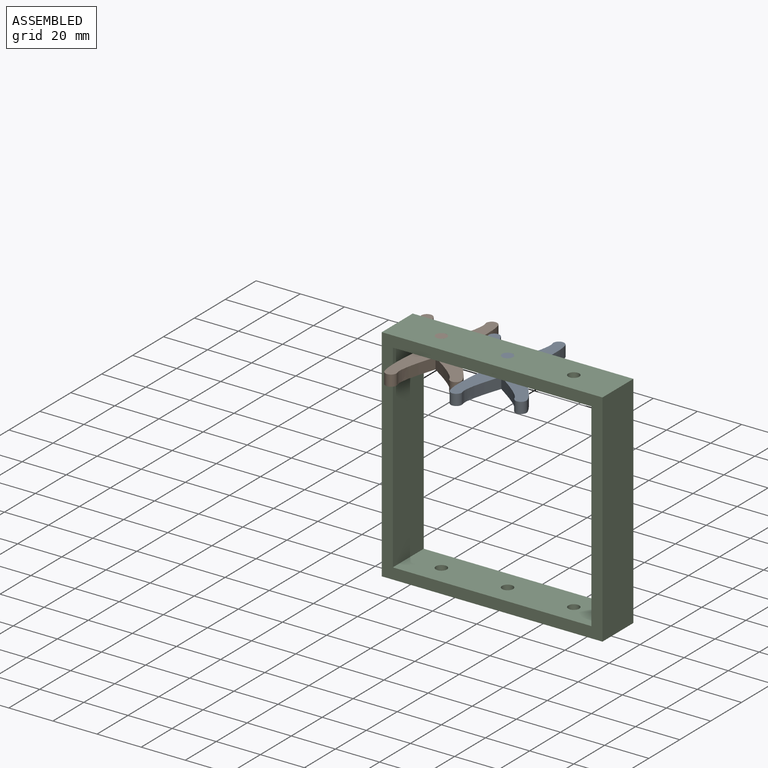
[diagram: assembled view]
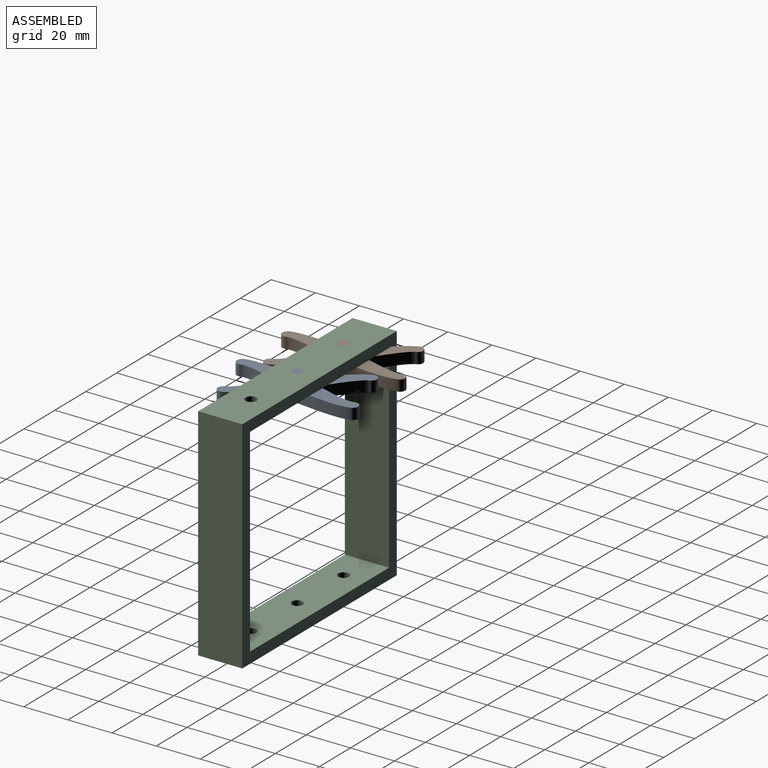
[diagram: assembled view, second angle]
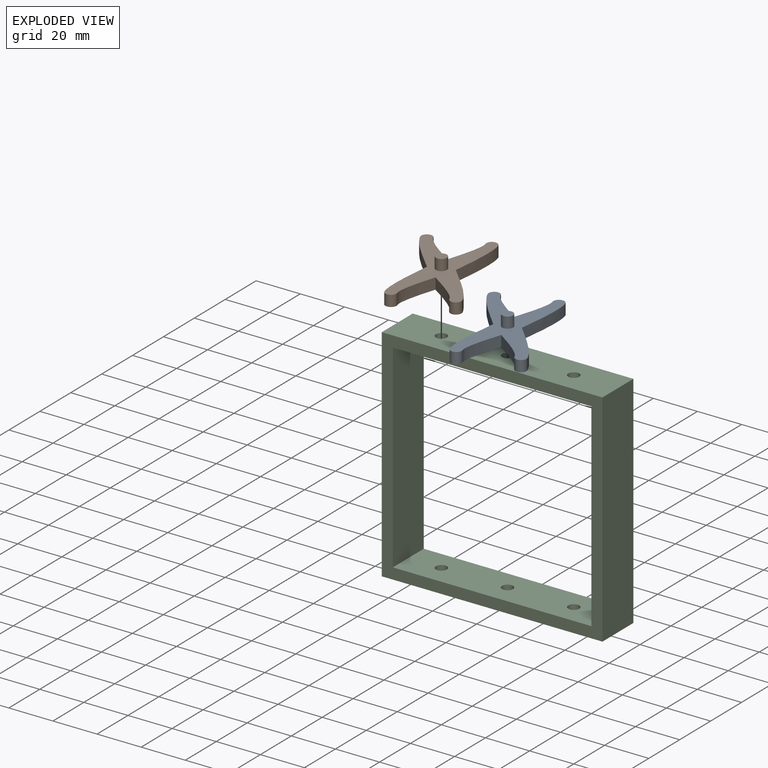
[diagram: exploded view]
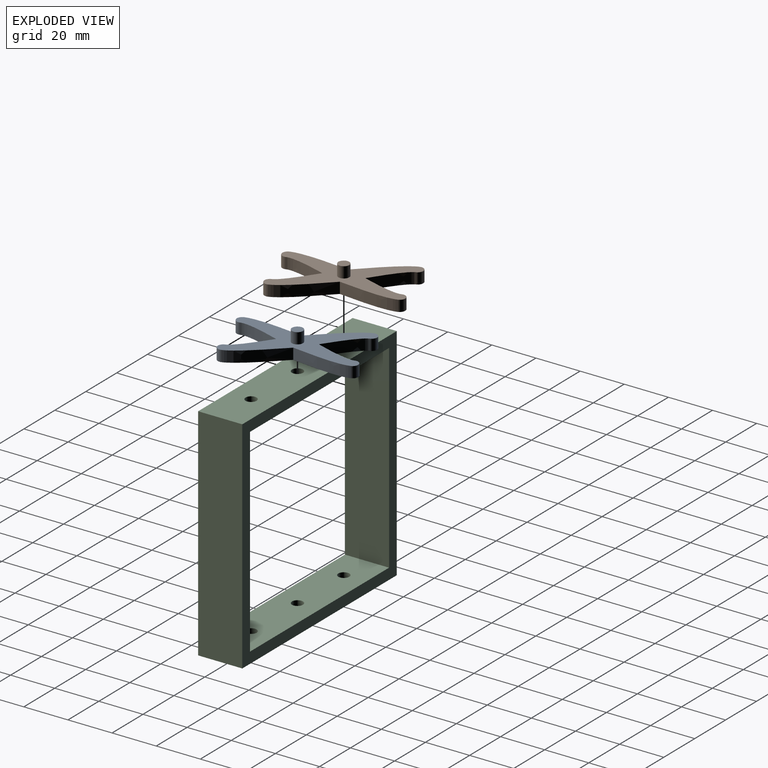
[diagram: exploded view, second angle]
ASSEMBLY  parts=3 mates=2
PART A: 16 faces, bbox 58x58x10 mm
  f0: cylinder r=2.5mm len=5mm, axis (0,0,-1), area 39.3mm2, adj f1,f11,f12,f13
  f1: extruded ~24.36x11mm, area 134.3mm2, adj f0,f2,f12,f13
  f2: extruded ~24.36x11mm, area 134.3mm2, adj f1,f3,f12,f13
  f3: cylinder r=2.5mm len=5mm, axis (0,0,-1), area 39.3mm2, adj f2,f4,f12,f13
  f4: extruded ~18.9x5mm, area 98.3mm2, adj f3,f5,f12,f13
  f5: extruded ~18.9x5mm, area 98.3mm2, adj f4,f6,f12,f13
  f6: cylinder r=2.5mm len=5mm, axis (0,0,-1), area 39.3mm2, adj f5,f7,f12,f13
  f7: extruded ~24.36x11mm, area 134.3mm2, adj f6,f8,f12,f13
  f8: extruded ~24.36x11mm, area 134.3mm2, adj f7,f9,f12,f13
  f9: cylinder r=2.5mm len=5mm, axis (0,0,-1), area 39.3mm2, adj f8,f10,f12,f13
  f10: extruded ~18.9x5mm, area 98.3mm2, adj f9,f11,f12,f13
  f11: extruded ~18.9x5mm, area 98.3mm2, adj f0,f10,f12,f13
  f12: plane 58.03x58.03mm, normal (0,0,1), area 738.9mm2, adj f0,f1,f2,f3,f4,f5,f6,f7
  f13: plane 58.03x58.03mm, normal (0,0,-1), area 758.5mm2, adj f0,f1,f2,f3,f4,f5,f6,f7
  f14: cylinder r=2.5mm len=5mm, axis (0,0,-1), area 78.5mm2, adj f12,f15
  f15: plane 5x5mm, normal (0,0,1), area 19.6mm2, adj f14
PART B: same geometry as A
PART C: 16 faces, bbox 100x20x100 mm
  f0: plane 100x20mm, normal (0,0,1), area 1941.1mm2, adj f1,f7,f8,f9,f13,f14,f15
  f1: plane 100x20mm, normal (-1,0,0), area 2000mm2, adj f0,f2,f8,f9
  f2: plane 100x20mm, normal (0,0,-1), area 1941.1mm2, adj f1,f7,f8,f9,f10,f11,f12
  f3: plane 90x20mm, normal (1,0,0), area 1800mm2, adj f4,f6,f8,f9
  f4: plane 90x20mm, normal (0,0,-1), area 1741.1mm2, adj f3,f5,f8,f9,f13,f14,f15
  f5: plane 90x20mm, normal (-1,0,0), area 1800mm2, adj f4,f6,f8,f9
  f6: plane 90x20mm, normal (0,0,1), area 1741.1mm2, adj f3,f5,f8,f9,f10,f11,f12
  f7: plane 100x20mm, normal (1,0,0), area 2000mm2, adj f0,f2,f8,f9
  f8: plane 100x100mm, normal (0,1,0), area 1900mm2, adj f0,f1,f2,f3,f4,f5,f6,f7
  f9: plane 100x100mm, normal (0,-1,0), area 1900mm2, adj f0,f1,f2,f3,f4,f5,f6,f7
  f10: cylinder r=2.5mm len=5mm, axis (0,0,1), area 78.5mm2, adj f2,f6
  f11: cylinder r=2.5mm len=5mm, axis (0,0,1), area 78.5mm2, adj f2,f6
  f12: cylinder r=2.5mm len=5mm, axis (0,0,1), area 78.5mm2, adj f2,f6
  f13: cylinder r=2.5mm len=5mm, axis (0,0,1), area 78.5mm2, adj f0,f4
  f14: cylinder r=2.5mm len=5mm, axis (0,0,1), area 78.5mm2, adj f0,f4
  f15: cylinder r=2.5mm len=5mm, axis (0,0,1), area 78.5mm2, adj f0,f4
PLACE A rot(axis=(0,0,-1),26.4deg) t=(0,0,40)mm
PLACE B rot(axis=(0,0,-1),25.5deg) t=(-30,0,40)mm
PLACE C at identity fixed
MATE revolute A.f14 <-> C.f10  axis (0,0,1) through (0,0,50)mm
MATE revolute B.f14 <-> C.f11  axis (0,0,1) through (-30,0,50)mm
